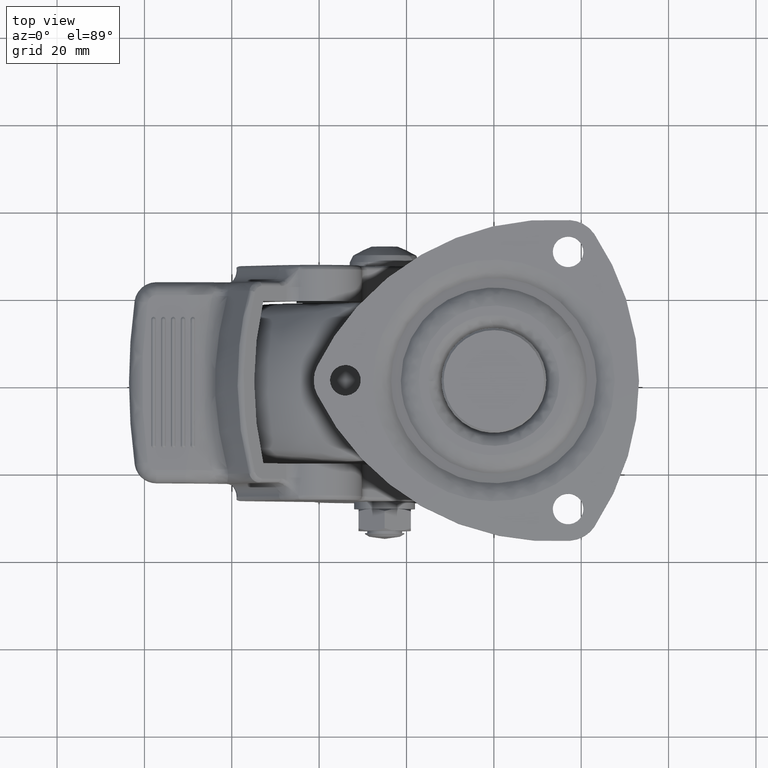
[diagram: clean part render]
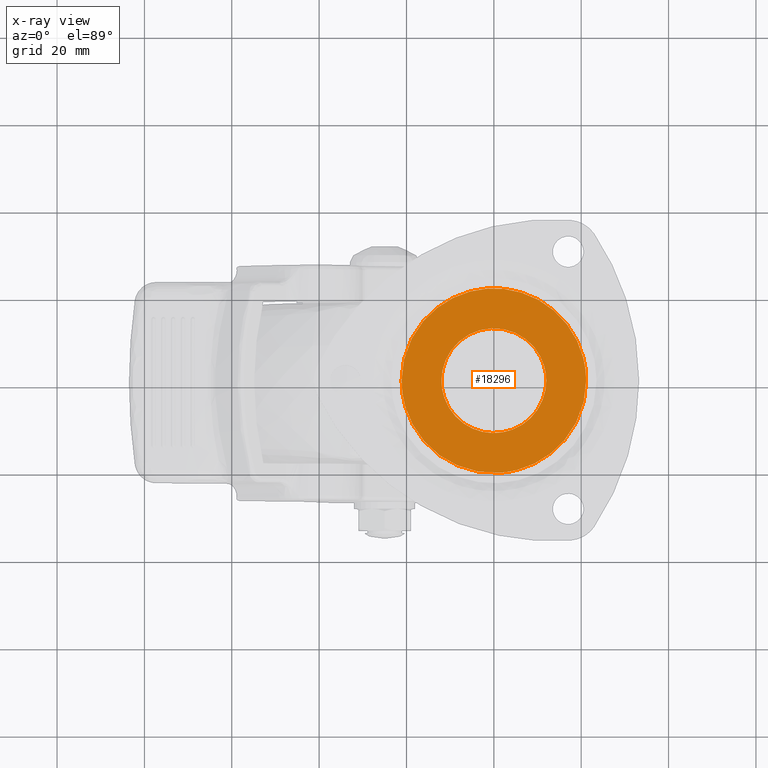
[diagram: x-ray — body ghosted, one internal face saturated and labeled with its STEP entity id]
A machine part, top view, then the same camera in x-ray: the body is ghosted and one INTERNAL B-rep face — a face not visible from any outside direction — is saturated and labeled: STEP entity #18296.
In plain terms, the highlighted face is a freeform B-spline surface patch.
Its self-contained STEP definition (entity closure, byte-faithful):
#14667=CARTESIAN_POINT('',(-9.806807964341086,6.915671879905885,-4.798018953096619));
#14668=VERTEX_POINT('',#14667);
#14674=CARTESIAN_POINT('',(-12.0,0.0,-4.798018953096620));
#14675=VERTEX_POINT('',#14674);
#14676=CARTESIAN_POINT('',(-12.0,0.0,-4.798018953096620));
#14677=CARTESIAN_POINT('',(-12.000000000000004,3.805603401221158,-4.798018953096620));
#14678=CARTESIAN_POINT('',(-9.806807964341086,6.915671879905885,-4.798018953096619));
#14686=(BOUNDED_CURVE()B_SPLINE_CURVE(2,(#14676,#14677,#14678),.UNSPECIFIED.,.F.,.U.)B_SPLINE_CURVE_WITH_KNOTS((3,3),(0.0,0.099105114110349),.UNSPECIFIED.)CURVE()GEOMETRIC_REPRESENTATION_ITEM()RATIONAL_B_SPLINE_CURVE((1.0,0.883891136509381,0.859838130342448))REPRESENTATION_ITEM(''));
#14687=EDGE_CURVE('',#14675,#14668,#14686,.T.);
#14689=CARTESIAN_POINT('',(12.0,0.0,-4.798018953096620));
#14690=VERTEX_POINT('',#14689);
#14691=CARTESIAN_POINT('',(12.0,0.0,-4.798018953096620));
#14692=CARTESIAN_POINT('',(12.0,-12.0,-4.798018953096620));
#14693=CARTESIAN_POINT('',(0.0,-12.0,-4.798018953096620));
#14694=CARTESIAN_POINT('',(-12.0,-12.0,-4.798018953096620));
#14695=CARTESIAN_POINT('',(-12.0,0.0,-4.798018953096620));
#14703=(BOUNDED_CURVE()B_SPLINE_CURVE(2,(#14691,#14692,#14693,#14694,#14695),.UNSPECIFIED.,.F.,.U.)B_SPLINE_CURVE_WITH_KNOTS((3,2,3),(0.500000000000000,0.750000000000000,1.0),.UNSPECIFIED.)CURVE()GEOMETRIC_REPRESENTATION_ITEM()RATIONAL_B_SPLINE_CURVE((1.0,0.707106781186548,1.0,0.707106781186548,1.0))REPRESENTATION_ITEM(''));
#14704=EDGE_CURVE('',#14690,#14675,#14703,.T.);
#14706=CARTESIAN_POINT('',(-3.206850932725704,11.563568095323230,-4.798018953096620));
#14707=VERTEX_POINT('',#14706);
#14708=CARTESIAN_POINT('',(-3.206850932725705,11.563568095323237,-4.798018953096620));
#14709=CARTESIAN_POINT('',(-1.633123262022143,12.000000000000005,-4.798018953096620));
#14710=CARTESIAN_POINT('',(0.0,12.0,-4.798018953096620));
#14711=CARTESIAN_POINT('',(12.0,12.0,-4.798018953096620));
#14712=CARTESIAN_POINT('',(12.0,0.0,-4.798018953096620));
#14720=(BOUNDED_CURVE()B_SPLINE_CURVE(2,(#14708,#14709,#14710,#14711,#14712),.UNSPECIFIED.,.F.,.U.)B_SPLINE_CURVE_WITH_KNOTS((3,2,3),(0.204451307039370,0.250000000000000,0.500000000000000),.UNSPECIFIED.)CURVE()GEOMETRIC_REPRESENTATION_ITEM()RATIONAL_B_SPLINE_CURVE((0.912717916302689,0.946636386824062,1.0,0.707106781186548,1.0))REPRESENTATION_ITEM(''));
#14721=EDGE_CURVE('',#14707,#14690,#14720,.T.);
#14827=CARTESIAN_POINT('',(-9.806807964341086,6.915671879905885,-4.798018953096619));
#14828=CARTESIAN_POINT('',(-7.336839647825311,10.418224542715899,-4.798018953096620));
#14829=CARTESIAN_POINT('',(-3.206850932725705,11.563568095323237,-4.798018953096620));
#14837=(BOUNDED_CURVE()B_SPLINE_CURVE(2,(#14827,#14828,#14829),.UNSPECIFIED.,.F.,.U.)B_SPLINE_CURVE_WITH_KNOTS((3,3),(0.099105114110349,0.204451307039370),.UNSPECIFIED.)CURVE()GEOMETRIC_REPRESENTATION_ITEM()RATIONAL_B_SPLINE_CURVE((0.859838130342448,0.834270402067969,0.912717916302689))REPRESENTATION_ITEM(''));
#14838=EDGE_CURVE('',#14668,#14707,#14837,.T.);
#16993=CARTESIAN_POINT('',(1.473699462784763,-21.081936724147749,-4.798018953247312));
#16994=VERTEX_POINT('',#16993);
#17008=CARTESIAN_POINT('',(-21.133382269288202,0.0,-4.798018953096630));
#17009=VERTEX_POINT('',#17008);
#17010=CARTESIAN_POINT('',(1.473699462784764,-21.081936724147749,-4.798018953247312));
#17011=CARTESIAN_POINT('',(0.737747690812209,-21.133382269288195,-4.798018953096631));
#17012=CARTESIAN_POINT('',(0.0,-21.133382269288202,-4.798018953096630));
#17013=CARTESIAN_POINT('',(-21.133382269288195,-21.133382269288195,-4.798018953096630));
#17014=CARTESIAN_POINT('',(-21.133382269288202,0.0,-4.798018953096630));
#17022=(BOUNDED_CURVE()B_SPLINE_CURVE(2,(#17010,#17011,#17012,#17013,#17014),.UNSPECIFIED.,.F.,.U.)B_SPLINE_CURVE_WITH_KNOTS((3,2,3),(0.737833686529460,0.750000000000000,1.0),.UNSPECIFIED.)CURVE()GEOMETRIC_REPRESENTATION_ITEM()RATIONAL_B_SPLINE_CURVE((0.972879876375065,0.985746277146081,1.0,0.707106781186547,1.0))REPRESENTATION_ITEM(''));
#17023=EDGE_CURVE('',#16994,#17009,#17022,.T.);
#17025=CARTESIAN_POINT('',(21.131713666435729,0.265562924831775,-4.798018953241265));
#17026=VERTEX_POINT('',#17025);
#17027=CARTESIAN_POINT('',(-21.133382269288202,0.0,-4.798018953096630));
#17028=CARTESIAN_POINT('',(-21.133382269288195,21.133382269288195,-4.798018953096630));
#17029=CARTESIAN_POINT('',(0.0,21.133382269288202,-4.798018953096630));
#17030=CARTESIAN_POINT('',(20.869467109495616,21.133382269288202,-4.798018953096629));
#17031=CARTESIAN_POINT('',(21.131713666435729,0.265562924831775,-4.798018953241265));
#17039=(BOUNDED_CURVE()B_SPLINE_CURVE(2,(#17027,#17028,#17029,#17030,#17031),.UNSPECIFIED.,.F.,.U.)B_SPLINE_CURVE_WITH_KNOTS((3,2,3),(0.0,0.250000000000000,0.497784295915677),.UNSPECIFIED.)CURVE()GEOMETRIC_REPRESENTATION_ITEM()RATIONAL_B_SPLINE_CURVE((1.0,0.707106781186547,1.0,0.709702639991330,0.994854295630084))REPRESENTATION_ITEM(''));
#17040=EDGE_CURVE('',#17009,#17026,#17039,.T.);
#17081=CARTESIAN_POINT('',(21.133382269288202,0.0,-4.798018953096630));
#17082=VERTEX_POINT('',#17081);
#17083=CARTESIAN_POINT('',(21.131713666435729,0.265562924831775,-4.798018953241265));
#17084=CARTESIAN_POINT('',(21.133382269288202,0.132786704736601,-4.798018953096630));
#17085=CARTESIAN_POINT('',(21.133382269288202,0.0,-4.798018953096630));
#17093=(BOUNDED_CURVE()B_SPLINE_CURVE(2,(#17083,#17084,#17085),.UNSPECIFIED.,.F.,.U.)B_SPLINE_CURVE_WITH_KNOTS((3,3),(0.497784295915677,0.500000000000000),.UNSPECIFIED.)CURVE()GEOMETRIC_REPRESENTATION_ITEM()RATIONAL_B_SPLINE_CURVE((0.994854295630084,0.997404141195218,1.0))REPRESENTATION_ITEM(''));
#17094=EDGE_CURVE('',#17026,#17082,#17093,.T.);
#17096=CARTESIAN_POINT('',(21.133382269288202,0.0,-4.798018953096630));
#17097=CARTESIAN_POINT('',(21.133382269288195,-19.707657672830521,-4.798018953096629));
#17098=CARTESIAN_POINT('',(1.473699462784763,-21.081936724147749,-4.798018953247312));
#17106=(BOUNDED_CURVE()B_SPLINE_CURVE(2,(#17096,#17097,#17098),.UNSPECIFIED.,.F.,.U.)B_SPLINE_CURVE_WITH_KNOTS((3,3),(0.500000000000000,0.737833686529461),.UNSPECIFIED.)CURVE()GEOMETRIC_REPRESENTATION_ITEM()RATIONAL_B_SPLINE_CURVE((1.0,0.721360504040466,0.972879876375066))REPRESENTATION_ITEM(''));
#17107=EDGE_CURVE('',#17082,#16994,#17106,.T.);
#18279=CARTESIAN_POINT('',(23.244607869609190,-23.242055384588259,-4.798018953096630));
#18280=CARTESIAN_POINT('',(-23.244608247503511,-23.242055384588259,-4.798018953096630));
#18281=CARTESIAN_POINT('',(23.244607869609190,23.244047186183021,-4.798018953096630));
#18282=CARTESIAN_POINT('',(-23.244608247503511,23.244047186183021,-4.798018953096630));
#18283=B_SPLINE_SURFACE_WITH_KNOTS('',1,1,((#18279,#18281),(#18280,#18282)),.UNSPECIFIED.,.F.,.F.,.U.,(2,2),(2,2),(0.0,46.489216117112690),(0.0,46.486102570771273),.UNSPECIFIED.);
#18284=ORIENTED_EDGE('',*,*,#17023,.F.);
#18285=ORIENTED_EDGE('',*,*,#17107,.F.);
#18286=ORIENTED_EDGE('',*,*,#17094,.F.);
#18287=ORIENTED_EDGE('',*,*,#17040,.F.);
#18288=EDGE_LOOP('',(#18284,#18285,#18286,#18287));
#18289=FACE_OUTER_BOUND('',#18288,.T.);
#18290=ORIENTED_EDGE('',*,*,#14704,.T.);
#18291=ORIENTED_EDGE('',*,*,#14687,.T.);
#18292=ORIENTED_EDGE('',*,*,#14838,.T.);
#18293=ORIENTED_EDGE('',*,*,#14721,.T.);
#18294=EDGE_LOOP('',(#18290,#18291,#18292,#18293));
#18295=FACE_BOUND('',#18294,.T.);
#18296=ADVANCED_FACE('',(#18289,#18295),#18283,.F.);